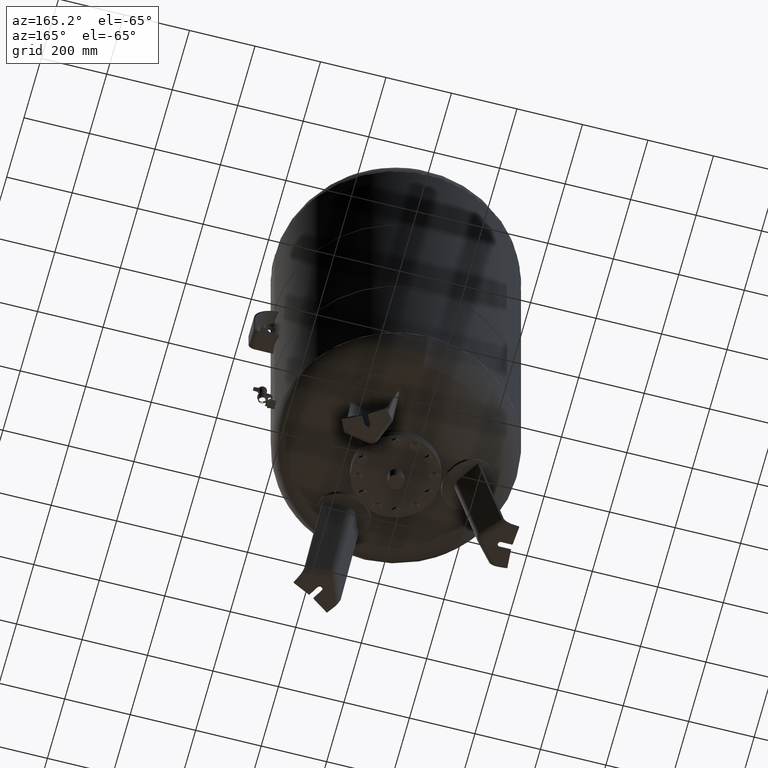
[diagram: clean part render]
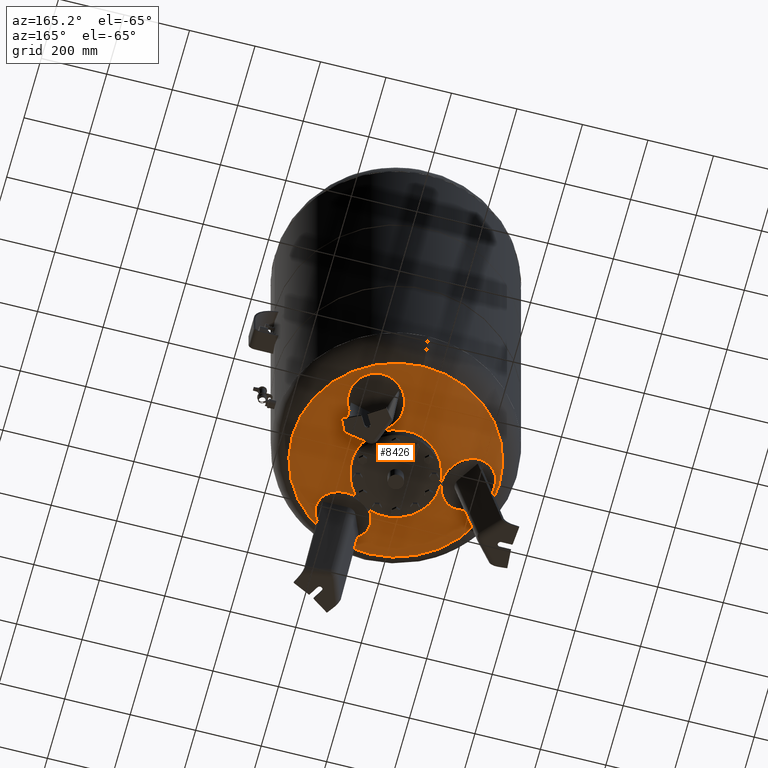
[diagram: same view with one face highlighted and labeled with its STEP entity id]
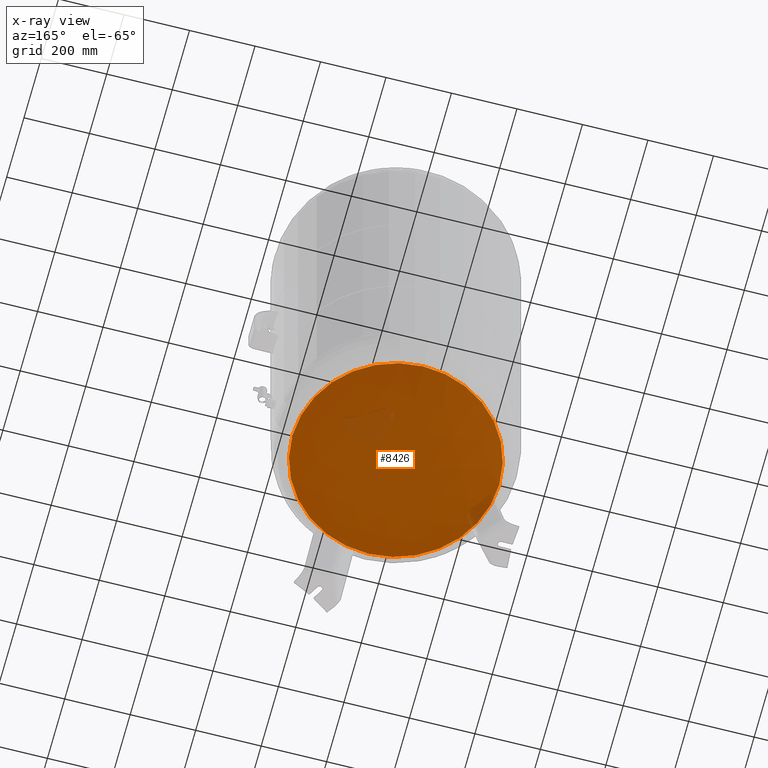
[diagram: x-ray of the same camera — body ghosted, the highlighted face saturated]
A machine part, auxiliary view. The second image highlights one B-rep face of the part: STEP entity #8426.
The next image is the same camera in x-ray: the body ghosted, the highlighted face saturated — about 5% of this face is hidden behind the body in this view.
In plain terms, the highlighted spherical surface has radius 594 mm.
Its self-contained STEP definition (entity closure, byte-faithful):
#8365=CARTESIAN_POINT('',(0.0,-315.931034482758610,415.985505725079460));
#8366=VERTEX_POINT('',#8365);
#8382=CARTESIAN_POINT('',(-3.868912E-014,315.931034482758610,415.985505725079580));
#8383=VERTEX_POINT('',#8382);
#8391=CARTESIAN_POINT('',(-315.931034482758610,-1.671377E-014,415.985505725079520));
#8392=VERTEX_POINT('',#8391);
#8393=CARTESIAN_POINT('',(0.0,-1.671377E-014,415.985505725079520));
#8394=DIRECTION('',(0.0,0.0,1.0));
#8395=DIRECTION('',(-1.0,0.0,0.0));
#8396=AXIS2_PLACEMENT_3D('',#8393,#8394,#8395);
#8397=CIRCLE('',#8396,315.931034482758610);
#8398=EDGE_CURVE('',#8383,#8392,#8397,.T.);
#8400=CARTESIAN_POINT('',(0.0,-1.671377E-014,415.985505725079520));
#8401=DIRECTION('',(0.0,0.0,1.0));
#8402=DIRECTION('',(-1.0,0.0,0.0));
#8403=AXIS2_PLACEMENT_3D('',#8400,#8401,#8402);
#8404=CIRCLE('',#8403,315.931034482758610);
#8405=EDGE_CURVE('',#8392,#8366,#8404,.T.);
#8410=CARTESIAN_POINT('',(0.0,-1.091160E-013,919.0));
#8411=DIRECTION('',(0.0,-1.0,0.0));
#8412=DIRECTION('',(1.0,0.0,0.0));
#8413=AXIS2_PLACEMENT_3D('',#8410,#8411,#8412);
#8414=SPHERICAL_SURFACE('',#8413,594.0);
#8415=ORIENTED_EDGE('',*,*,#8405,.F.);
#8416=ORIENTED_EDGE('',*,*,#8398,.F.);
#8417=CARTESIAN_POINT('',(0.0,-1.671377E-014,415.985505725079520));
#8418=DIRECTION('',(0.0,0.0,1.0));
#8419=DIRECTION('',(-1.0,0.0,0.0));
#8420=AXIS2_PLACEMENT_3D('',#8417,#8418,#8419);
#8421=CIRCLE('',#8420,315.931034482758610);
#8422=EDGE_CURVE('',#8366,#8383,#8421,.T.);
#8423=ORIENTED_EDGE('',*,*,#8422,.F.);
#8424=EDGE_LOOP('',(#8415,#8416,#8423));
#8425=FACE_OUTER_BOUND('',#8424,.T.);
#8426=ADVANCED_FACE('',(#8425),#8414,.T.);